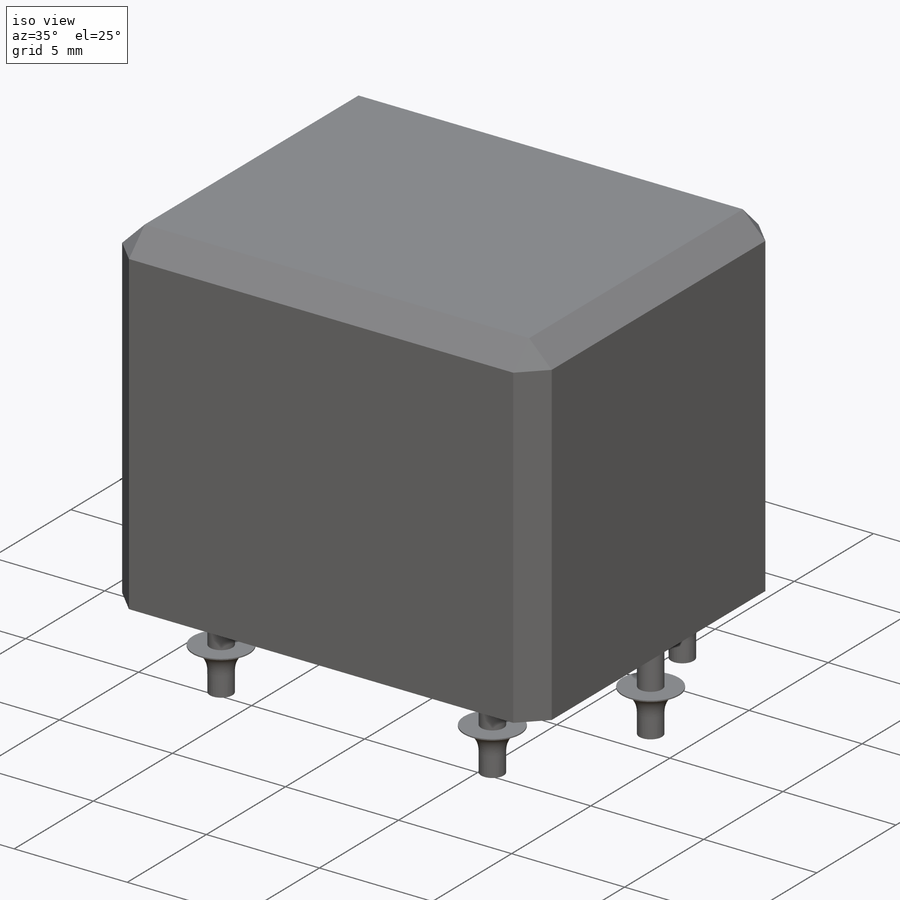
[diagram: iso view]
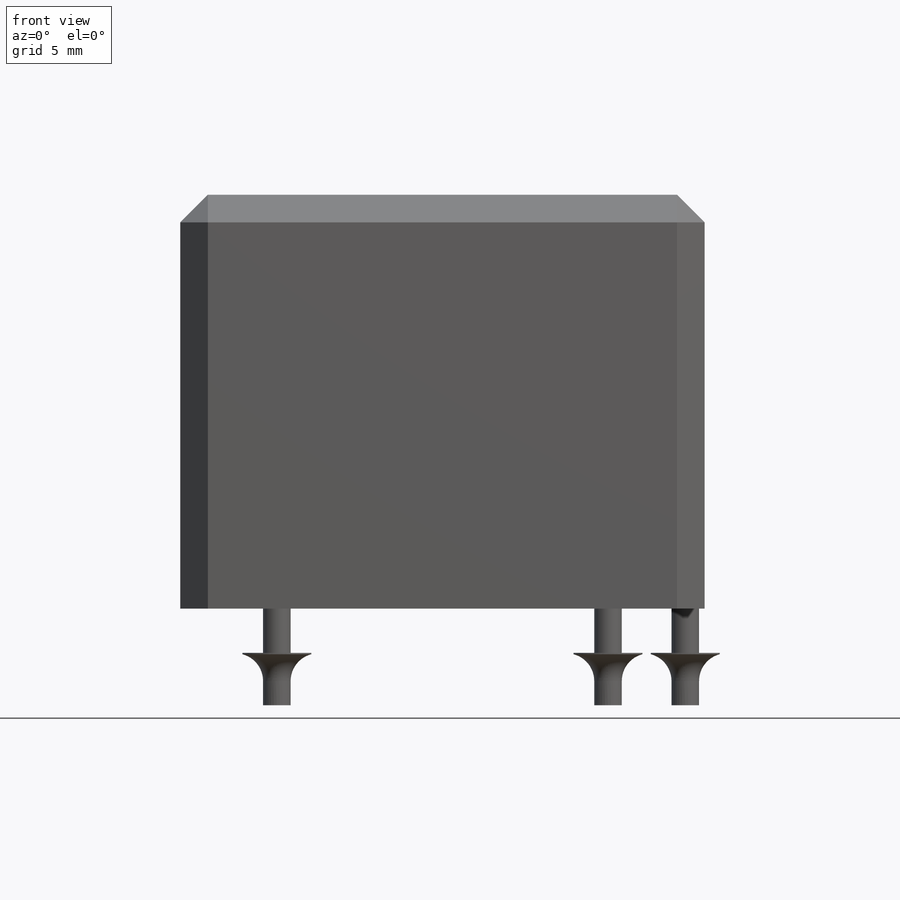
[diagram: front view]
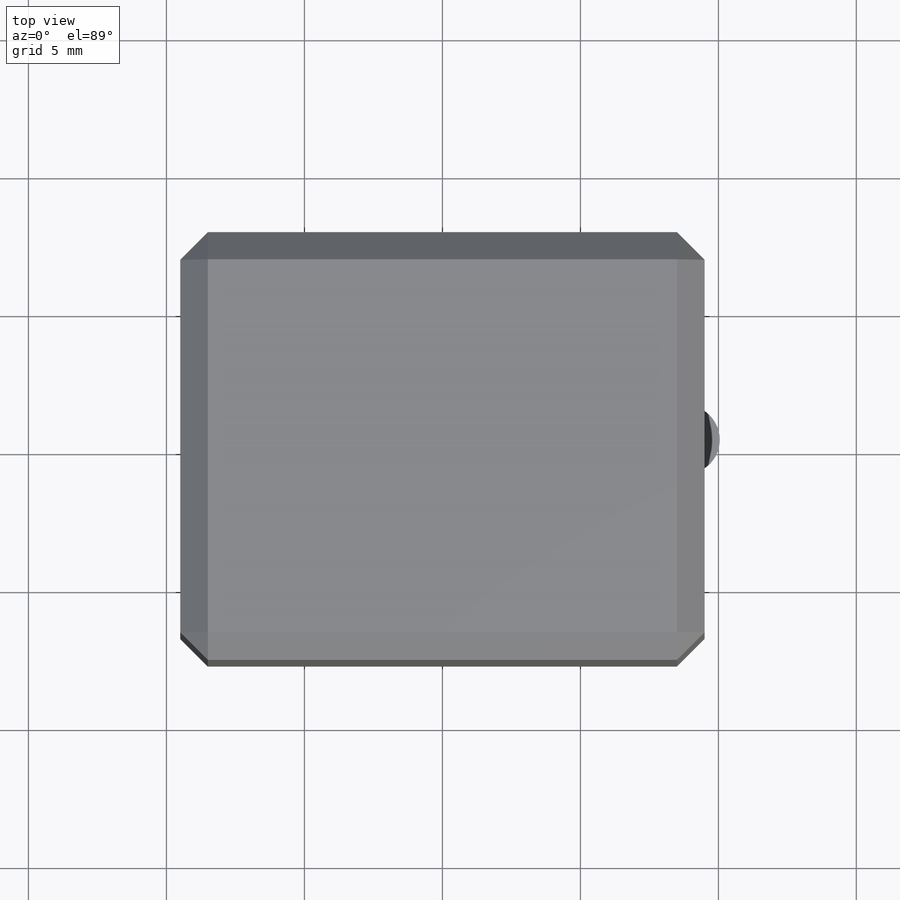
[diagram: top view]
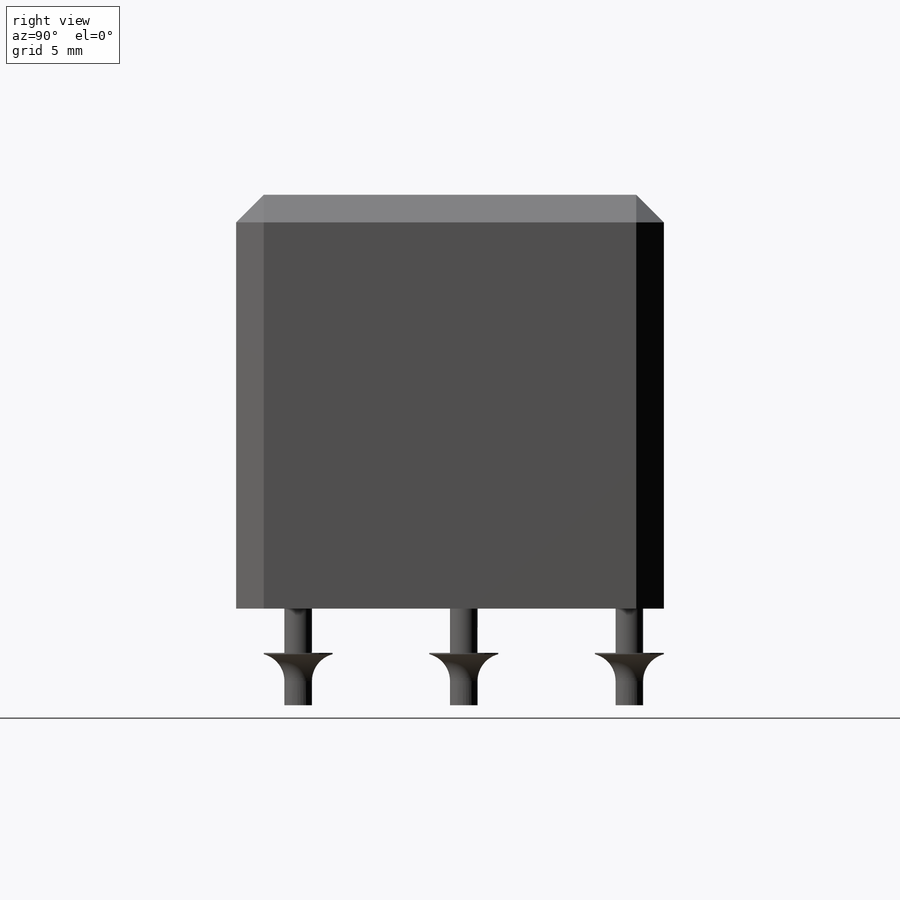
[diagram: right view]
SOLIDWORKS PART (.sldprt)
format: sldprt  version: not decoded by parser v0  size: 392,704 bytes
history: native  units: mm
features: plane x4, sketch x3, extrude x3, pattern_linear x2, material x1, chamfer x1, fillet x1 (+8 scaffold rows collapsed)
feature tree (23):
  scaffold x8  (default folders/planes/origin — collapsed)
  material  "Matériau <non spécifié>"
  plane  "Plan de face"
  plane  "Plan de dessus"
  plane  "Plan de droite"
  sketch  "Esquisse1"  dims[c1.D1=~59.848568mm c1.D2=~94.471707mm c2.D1=19.0mm c2.D2=15.0mm]
  extrude  "Boss.-Extru.1"  Depth=15.5mm
  chamfer  "Chanfrein1"  Distance=1mm Angle=45deg
  sketch  "Esquisse2"  dims[c1.D1=0.25mm c1.D2=1.0mm c2.D1=5.5mm c2.D2=6.0mm]
  extrude  "Boss.-Extru.2"  Depth=3.5mm
  plane  "Plan1"  Offset=1.6mm
  sketch  "Esquisse3"  dims[D1=1.0mm]
  extrude  "Boss.-Extru.3"  Depth=0.05mm
  fillet  "Congé1"  Radius=1mm
  pattern_linear  "Répétition linéaire2"  Count1=2 Count2=2 Spacing1=12mm Spacing2=12mm
  pattern_linear  "Répétition linéaire3"  Count1=2 Count2=2 Spacing1=2.8mm Spacing2=6mm
decode coverage: 10 of 10 modeling features carry decoded parameters
note: ~ marks probable driven/reference dimensions
note: suppression state not decoded; provenance and decode notes live in map.json
